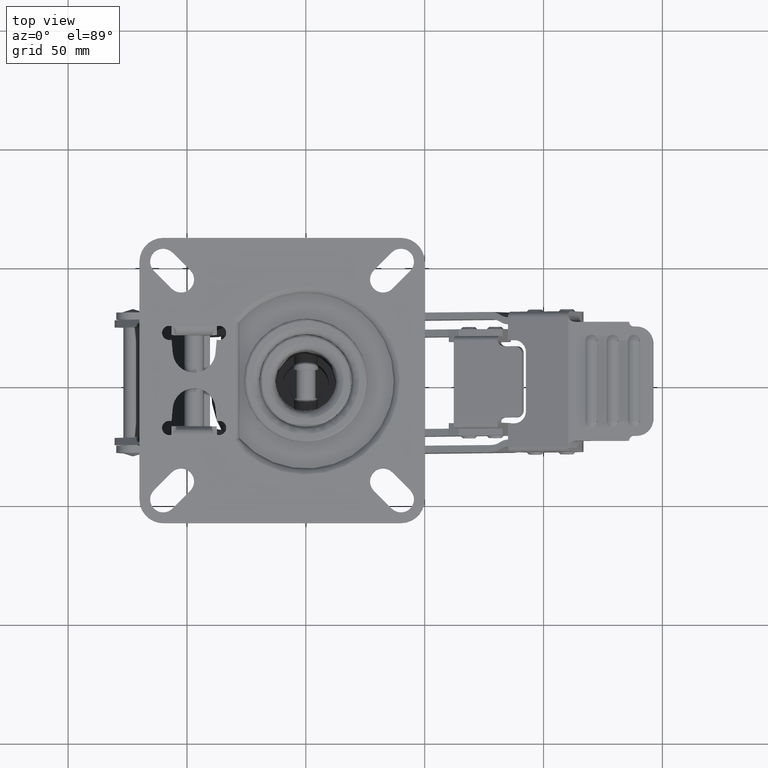
[diagram: clean part render]
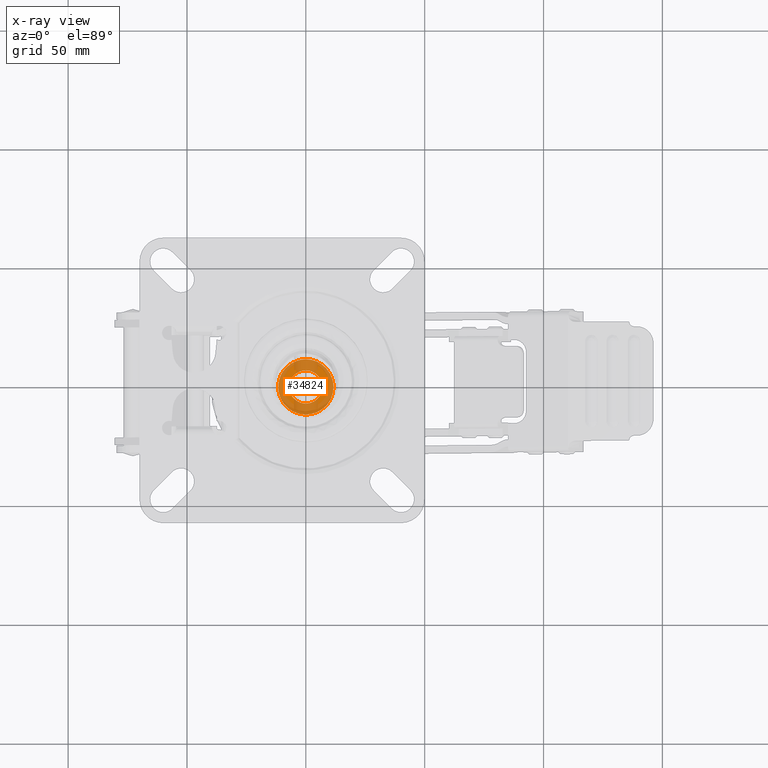
[diagram: x-ray — body ghosted, one internal face saturated and labeled with its STEP entity id]
A machine part, top view, then the same camera in x-ray: the body is ghosted and one INTERNAL B-rep face — a face not visible from any outside direction — is saturated and labeled: STEP entity #34824.
In plain terms, the highlighted face is a freeform B-spline surface patch.
Its self-contained STEP definition (entity closure, byte-faithful):
#33169=CARTESIAN_POINT('',(4.729132085584462,-5.160941866286947,-113.299986916666600));
#33170=VERTEX_POINT('',#33169);
#33176=CARTESIAN_POINT('',(7.0,0.0,-113.299986916666600));
#33177=VERTEX_POINT('',#33176);
#33178=CARTESIAN_POINT('',(4.729132085584462,-5.160941866286947,-113.299986916666600));
#33179=CARTESIAN_POINT('',(5.152637496795077,-4.773055862544343,-113.299986916666400));
#33180=CARTESIAN_POINT('',(5.863697692426042,-3.938608091116445,-113.299986916666500));
#33181=CARTESIAN_POINT('',(6.750288971226582,-2.206023763379982,-113.299986916666700));
#33182=CARTESIAN_POINT('',(7.000619812240419,-0.846407497033757,-113.299986916666700));
#33183=CARTESIAN_POINT('',(7.0,0.0,-113.299986916666600));
#33184=B_SPLINE_CURVE_WITH_KNOTS('',3,(#33178,#33179,#33180,#33181,#33182,#33183),.UNSPECIFIED.,.F.,.U.,(4,1,1,4),(0.000000082315506,1.722851445112977,3.264306984654676,5.803260543517969),.UNSPECIFIED.);
#33185=EDGE_CURVE('',#33170,#33177,#33184,.T.);
#33187=CARTESIAN_POINT('',(-0.000003220856095,6.999999999999258,-113.299986916666600));
#33188=VERTEX_POINT('',#33187);
#33189=CARTESIAN_POINT('',(7.0,0.0,-113.299986916666600));
#33190=CARTESIAN_POINT('',(7.000052772337597,0.458139339401550,-113.299986916666800));
#33191=CARTESIAN_POINT('',(6.906921692995838,1.403052748027626,-113.299986916666400));
#33192=CARTESIAN_POINT('',(6.480652543328832,2.778024558947215,-113.299986916666800));
#33193=CARTESIAN_POINT('',(5.666620208835047,4.236077212458083,-113.299986916666400));
#33194=CARTESIAN_POINT('',(4.509102974941507,5.452028759611023,-113.299986916667190));
#33195=CARTESIAN_POINT('',(3.165890310014238,6.290702427020923,-113.299986916665400));
#33196=CARTESIAN_POINT('',(1.717916146708431,6.849307584146080,-113.299986916667610));
#33197=CARTESIAN_POINT('',(0.658618238851908,7.000258135037858,-113.299986916666100));
#33198=CARTESIAN_POINT('',(-0.000003220856095,6.999999999999258,-113.299986916666600));
#33199=B_SPLINE_CURVE_WITH_KNOTS('',3,(#33189,#33190,#33191,#33192,#33193,#33194,#33195,#33196,#33197,#33198),.UNSPECIFIED.,.F.,.U.,(4,1,1,1,1,1,1,4),(0.000000296667356,1.374416876562727,2.834815376691379,4.295221537660758,6.356809845995928,7.817213220488526,9.019874867485571,10.995645095493900),.UNSPECIFIED.);
#33200=EDGE_CURVE('',#33177,#33188,#33199,.T.);
#33202=CARTESIAN_POINT('',(-7.0,0.0,-113.299986916666600));
#33203=VERTEX_POINT('',#33202);
#33204=CARTESIAN_POINT('',(-0.000003220856095,6.999999999999258,-113.299986916666600));
#33205=CARTESIAN_POINT('',(-0.715894888401788,7.000306284961257,-113.299986916666500));
#33206=CARTESIAN_POINT('',(-1.889692813468496,6.818329522532832,-113.299986916666700));
#33207=CARTESIAN_POINT('',(-3.317681957806699,6.205960052049446,-113.299986916666700));
#33208=CARTESIAN_POINT('',(-4.588921756707920,5.368120162912644,-113.299986916666300));
#33209=CARTESIAN_POINT('',(-5.546912769812163,4.361923883823152,-113.299986916666800));
#33210=CARTESIAN_POINT('',(-6.306893502496210,3.110946812258342,-113.299986916667390));
#33211=CARTESIAN_POINT('',(-6.841209065750909,1.775214846223071,-113.299986916665900));
#33212=CARTESIAN_POINT('',(-7.000238668225468,0.658609633296561,-113.299986916667190));
#33213=CARTESIAN_POINT('',(-7.0,0.0,-113.299986916666600));
#33214=B_SPLINE_CURVE_WITH_KNOTS('',3,(#33204,#33205,#33206,#33207,#33208,#33209,#33210,#33211,#33212,#33213),.UNSPECIFIED.,.F.,.U.,(4,1,1,1,1,1,1,4),(0.000000297787109,2.147577630064740,3.522049049665839,4.638835369818242,6.700422833269865,7.645400965764980,9.019871890632697,10.995641464815650),.UNSPECIFIED.);
#33215=EDGE_CURVE('',#33188,#33203,#33214,.T.);
#33217=CARTESIAN_POINT('',(-4.882023254500806,-5.016556356075384,-113.299986916666600));
#33218=VERTEX_POINT('',#33217);
#33219=CARTESIAN_POINT('',(-7.0,0.0,-113.299986916666600));
#33220=CARTESIAN_POINT('',(-7.000464043023081,-0.757461942205497,-113.299986916666300));
#33221=CARTESIAN_POINT('',(-6.818498147038383,-1.864035719117439,-113.299986916666900));
#33222=CARTESIAN_POINT('',(-6.091313196133403,-3.586436151928969,-113.299986916666400));
#33223=CARTESIAN_POINT('',(-5.425198659250990,-4.488634498281091,-113.299986916666700));
#33224=CARTESIAN_POINT('',(-4.882023254500806,-5.016556356075384,-113.299986916666600));
#33225=B_SPLINE_CURVE_WITH_KNOTS('',3,(#33219,#33220,#33221,#33222,#33223,#33224),.UNSPECIFIED.,.F.,.U.,(4,1,1,4),(0.000000077224949,2.272156693660971,3.320798731728000,5.592955348061723),.UNSPECIFIED.);
#33226=EDGE_CURVE('',#33203,#33218,#33225,.T.);
#33262=CARTESIAN_POINT('',(0.000003220856027,-6.999999999999259,-113.299986916666600));
#33263=VERTEX_POINT('',#33262);
#33264=CARTESIAN_POINT('',(-4.882023254500806,-5.016556356075384,-113.299986916666600));
#33265=CARTESIAN_POINT('',(-4.519096487452786,-5.369871698181617,-113.299986916666400));
#33266=CARTESIAN_POINT('',(-3.760683185462898,-5.962258081525276,-113.299986916666800));
#33267=CARTESIAN_POINT('',(-2.138115865015303,-6.762870312339105,-113.299986916666700));
#33268=CARTESIAN_POINT('',(-0.844293386597631,-7.000753041550088,-113.299986916666500));
#33269=CARTESIAN_POINT('',(0.000003220856027,-6.999999999999259,-113.299986916666600));
#33270=B_SPLINE_CURVE_WITH_KNOTS('',3,(#33264,#33265,#33266,#33267,#33268,#33269),.UNSPECIFIED.,.F.,.U.,(4,1,1,4),(0.000000038427661,1.519534444222634,2.870230682328887,5.402788769174530),.UNSPECIFIED.);
#33271=EDGE_CURVE('',#33218,#33263,#33270,.T.);
#33273=CARTESIAN_POINT('',(0.000003220856027,-6.999999999999259,-113.299986916666600));
#33274=CARTESIAN_POINT('',(0.703153071006082,-7.000268368622317,-113.299986916666600));
#33275=CARTESIAN_POINT('',(1.947004999739989,-6.811014576180628,-113.299986916666800));
#33276=CARTESIAN_POINT('',(3.539898575635815,-6.104744777006803,-113.299986916666400));
#33277=CARTESIAN_POINT('',(4.370277586353938,-5.489850979867440,-113.299986916666800));
#33278=CARTESIAN_POINT('',(4.729132085584462,-5.160941866286947,-113.299986916666600));
#33279=B_SPLINE_CURVE_WITH_KNOTS('',3,(#33273,#33274,#33275,#33276,#33277,#33278),.UNSPECIFIED.,.F.,.U.,(4,1,1,4),(0.000000031343983,2.109441068777129,3.732086284115418,5.192467947147272),.UNSPECIFIED.);
#33280=EDGE_CURVE('',#33263,#33170,#33279,.T.);
#33807=CARTESIAN_POINT('',(6.413269732310785,9.708436276913378,-113.299987207258700));
#33808=VERTEX_POINT('',#33807);
#33814=CARTESIAN_POINT('',(11.635452002976120,0.0,-113.299986916666600));
#33815=VERTEX_POINT('',#33814);
#33816=CARTESIAN_POINT('',(6.413269732310785,9.708436276913378,-113.299987207258700));
#33817=CARTESIAN_POINT('',(7.461852698632987,9.016672338597561,-113.299987186552800));
#33818=CARTESIAN_POINT('',(9.018992941750401,7.576658000233578,-113.299987143450490));
#33819=CARTESIAN_POINT('',(10.572893121375980,5.071365670258863,-113.299987068462400));
#33820=CARTESIAN_POINT('',(11.433810273145260,2.631770273134070,-113.299986995440310));
#33821=CARTESIAN_POINT('',(11.635643052604170,0.897231816978649,-113.299986943522800));
#33822=CARTESIAN_POINT('',(11.635452002976120,0.0,-113.299986916666600));
#33823=B_SPLINE_CURVE_WITH_KNOTS('',3,(#33816,#33817,#33818,#33819,#33820,#33821,#33822),.UNSPECIFIED.,.F.,.U.,(4,1,1,1,4),(0.000000085702649,3.768358419527610,6.280522571468483,8.792802831850288,11.484472107761359),.UNSPECIFIED.);
#33824=EDGE_CURVE('',#33808,#33815,#33823,.T.);
#33826=CARTESIAN_POINT('',(-0.000002527444483,-11.635452002975841,-113.299986916666600));
#33827=VERTEX_POINT('',#33826);
#33828=CARTESIAN_POINT('',(11.635452002976120,0.0,-113.299986916666600));
#33829=CARTESIAN_POINT('',(11.635500840515130,-0.713939227454842,-113.299986916666700));
#33830=CARTESIAN_POINT('',(11.490524755596720,-2.284603023589314,-113.299986916666200));
#33831=CARTESIAN_POINT('',(10.809474991901411,-4.530093806891727,-113.299986916667710));
#33832=CARTESIAN_POINT('',(9.817681343348792,-6.331669608557303,-113.299986916665700));
#33833=CARTESIAN_POINT('',(8.653820537993848,-7.841992600556331,-113.299986916669700));
#33834=CARTESIAN_POINT('',(7.105342715886708,-9.334925976387344,-113.299986916658000));
#33835=CARTESIAN_POINT('',(5.177781197745754,-10.506295104069650,-113.299986916680990));
#33836=CARTESIAN_POINT('',(2.712754471934295,-11.405288658933610,-113.299986916649500));
#33837=CARTESIAN_POINT('',(1.094760372133338,-11.635901483287400,-113.299986916676500));
#33838=CARTESIAN_POINT('',(-0.000002527444483,-11.635452002975841,-113.299986916666600));
#33839=B_SPLINE_CURVE_WITH_KNOTS('',3,(#33828,#33829,#33830,#33831,#33832,#33833,#33834,#33835,#33836,#33837,#33838),.UNSPECIFIED.,.F.,.U.,(4,1,1,1,1,1,1,1,4),(0.000000255378069,2.141827320498667,4.712052426979909,6.996724411140326,8.281825459058984,10.423591749800490,13.422199313315270,14.992913350518769,18.277041371354649),.UNSPECIFIED.);
#33840=EDGE_CURVE('',#33815,#33827,#33839,.T.);
#33842=CARTESIAN_POINT('',(-11.635452002976120,0.0,-113.299986916666600));
#33843=VERTEX_POINT('',#33842);
#33844=CARTESIAN_POINT('',(-0.000002527444483,-11.635452002975841,-113.299986916666600));
#33845=CARTESIAN_POINT('',(-1.189990258157091,-11.636049156470930,-113.299986916666600));
#33846=CARTESIAN_POINT('',(-3.045820327884215,-11.348091585757910,-113.299986916666600));
#33847=CARTESIAN_POINT('',(-5.517430889348583,-10.324176958520860,-113.299986916666900));
#33848=CARTESIAN_POINT('',(-7.635140469709362,-8.928260794176765,-113.299986916665600));
#33849=CARTESIAN_POINT('',(-9.204234853412613,-7.239192792453179,-113.299986916668700));
#33850=CARTESIAN_POINT('',(-10.365732270404729,-5.379281195193127,-113.299986916663600));
#33851=CARTESIAN_POINT('',(-11.321018077909841,-3.188561123049375,-113.299986916667900));
#33852=CARTESIAN_POINT('',(-11.636222565718260,-1.237605977203568,-113.299986916666700));
#33853=CARTESIAN_POINT('',(-11.635452002976120,0.0,-113.299986916666600));
#33854=B_SPLINE_CURVE_WITH_KNOTS('',3,(#33844,#33845,#33846,#33847,#33848,#33849,#33850,#33851,#33852,#33853),.UNSPECIFIED.,.F.,.U.,(4,1,1,1,1,1,1,4),(0.000000256251081,3.569715312003183,5.568792968162763,7.996273979130040,11.137515961364899,12.422646934667700,14.564533758433710,18.277038522317810),.UNSPECIFIED.);
#33855=EDGE_CURVE('',#33827,#33843,#33854,.T.);
#33857=CARTESIAN_POINT('',(-8.440057991484572,8.009315974936493,-113.299986601169000));
#33858=VERTEX_POINT('',#33857);
#33859=CARTESIAN_POINT('',(-11.635452002976120,0.0,-113.299986916666600));
#33860=CARTESIAN_POINT('',(-11.635578387481191,0.828179948123513,-113.299986884043610));
#33861=CARTESIAN_POINT('',(-11.472669659538109,2.346440711856433,-113.299986824237190));
#33862=CARTESIAN_POINT('',(-10.839635329118501,4.374782578489976,-113.299986744337800));
#33863=CARTESIAN_POINT('',(-9.880949836457665,6.268714273376713,-113.299986669734390));
#33864=CARTESIAN_POINT('',(-9.010249542014083,7.408671503454867,-113.299986624828800));
#33865=CARTESIAN_POINT('',(-8.440057991484572,8.009315974936493,-113.299986601169000));
#33866=B_SPLINE_CURVE_WITH_KNOTS('',3,(#33859,#33860,#33861,#33862,#33863,#33864,#33865),.UNSPECIFIED.,.F.,.U.,(4,1,1,1,4),(0.000000060723682,2.484537018916603,4.554940905707595,6.349361689968891,8.833898648113255),.UNSPECIFIED.);
#33867=EDGE_CURVE('',#33843,#33858,#33866,.T.);
#33957=CARTESIAN_POINT('',(0.000002527444746,11.635452002975841,-113.299986916666600));
#33958=VERTEX_POINT('',#33957);
#33959=CARTESIAN_POINT('',(-8.440057991484572,8.009315974936493,-113.299986601169000));
#33960=CARTESIAN_POINT('',(-7.560266109065855,8.937495602667548,-113.299986634056490));
#33961=CARTESIAN_POINT('',(-6.047841228317459,10.077935370960240,-113.299986690592500));
#33962=CARTESIAN_POINT('',(-3.147226733220690,11.324076864046910,-113.299986799019810));
#33963=CARTESIAN_POINT('',(-1.278884751324663,11.636313062460390,-113.299986868860900));
#33964=CARTESIAN_POINT('',(0.000002527444746,11.635452002975841,-113.299986916666600));
#33965=B_SPLINE_CURVE_WITH_KNOTS('',3,(#33959,#33960,#33961,#33962,#33963,#33964),.UNSPECIFIED.,.F.,.U.,(4,1,1,4),(0.000000074087776,3.836291696077460,5.606851842776447,9.443143464848806),.UNSPECIFIED.);
#33966=EDGE_CURVE('',#33858,#33958,#33965,.T.);
#33968=CARTESIAN_POINT('',(0.000002527444746,11.635452002975841,-113.299986916666600));
#33969=CARTESIAN_POINT('',(0.919843112848837,11.635658252453929,-113.299986958345900));
#33970=CARTESIAN_POINT('',(2.547142563805844,11.441443849326291,-113.299987032079900));
#33971=CARTESIAN_POINT('',(4.699256715092161,10.708135521157040,-113.299987129595190));
#33972=CARTESIAN_POINT('',(5.881951297748362,10.059460738340730,-113.299987183183900));
#33973=CARTESIAN_POINT('',(6.413269732310785,9.708436276913378,-113.299987207258700));
#33974=B_SPLINE_CURVE_WITH_KNOTS('',3,(#33968,#33969,#33970,#33971,#33972,#33973),.UNSPECIFIED.,.F.,.U.,(4,1,1,4),(0.000000015345409,2.759518325159592,4.882223844159511,6.792659298468593),.UNSPECIFIED.);
#33975=EDGE_CURVE('',#33958,#33808,#33974,.T.);
#34803=CARTESIAN_POINT('',(12.797834049871099,-12.797834049870790,-113.299986916666600));
#34804=CARTESIAN_POINT('',(-12.797834257929191,-12.797834049870790,-113.299986916666600));
#34805=CARTESIAN_POINT('',(12.797834049871099,12.797834257928891,-113.299986916666600));
#34806=CARTESIAN_POINT('',(-12.797834257929191,12.797834257928891,-113.299986916666600));
#34807=B_SPLINE_SURFACE_WITH_KNOTS('',1,1,((#34803,#34805),(#34804,#34806)),.UNSPECIFIED.,.F.,.F.,.U.,(2,2),(2,2),(0.0,25.595668307800288),(0.0,25.595668307799681),.UNSPECIFIED.);
#34808=ORIENTED_EDGE('',*,*,#33855,.F.);
#34809=ORIENTED_EDGE('',*,*,#33840,.F.);
#34810=ORIENTED_EDGE('',*,*,#33824,.F.);
#34811=ORIENTED_EDGE('',*,*,#33975,.F.);
#34812=ORIENTED_EDGE('',*,*,#33966,.F.);
#34813=ORIENTED_EDGE('',*,*,#33867,.F.);
#34814=EDGE_LOOP('',(#34808,#34809,#34810,#34811,#34812,#34813));
#34815=FACE_OUTER_BOUND('',#34814,.T.);
#34816=ORIENTED_EDGE('',*,*,#33200,.F.);
#34817=ORIENTED_EDGE('',*,*,#33185,.F.);
#34818=ORIENTED_EDGE('',*,*,#33280,.F.);
#34819=ORIENTED_EDGE('',*,*,#33271,.F.);
#34820=ORIENTED_EDGE('',*,*,#33226,.F.);
#34821=ORIENTED_EDGE('',*,*,#33215,.F.);
#34822=EDGE_LOOP('',(#34816,#34817,#34818,#34819,#34820,#34821));
#34823=FACE_BOUND('',#34822,.T.);
#34824=ADVANCED_FACE('',(#34815,#34823),#34807,.F.);